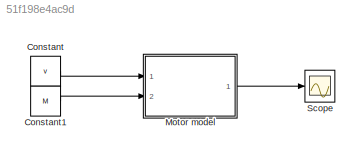
MODEL slx_51f198e4ac9d
KIND model
CONFIG AbsTol = auto
CONFIG EnableMultiTasking = off
CONFIG FixedStep = sampletime
CONFIG MaxStep = auto
CONFIG MinStep = auto
CONFIG RelTol = 1e-3
CONFIG SampleTimeConstraint = Unconstrained
CONFIG Solver = FixedStepAuto
CONFIG SolverName = FixedStepAuto
CONFIG StartTime = 0.0
CONFIG StopTime = 2410
BLOCK [Constant] Constant
  Value = v
BLOCK [Constant] Constant1
  Value = M
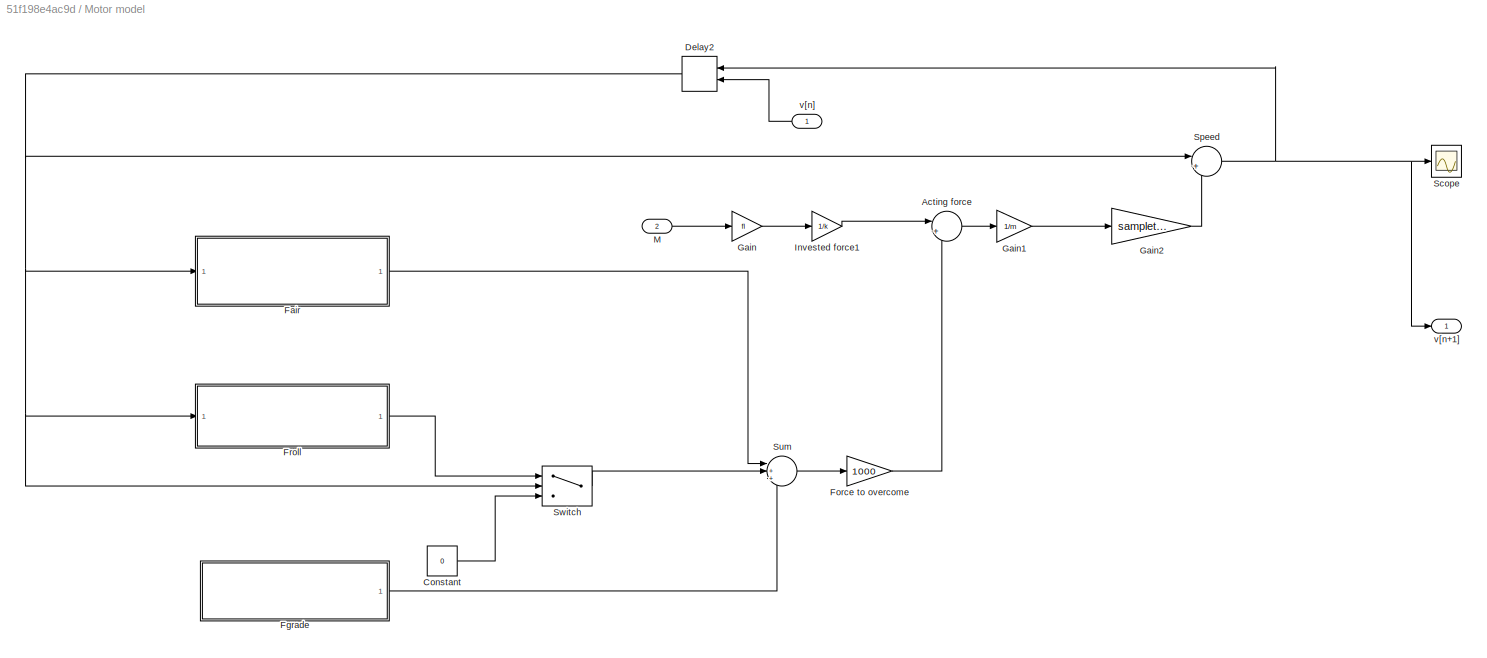
BLOCK [SubSystem] Motor model
  Ports = [2, 1]
  RequestExecContextInheritance = off
BLOCK [Sum] Motor model/Acting force 
  IconShape = round
  InputSameDT = off
  Inputs = |+-
  OutDataTypeStr = Inherit: Inherit via internal rule
  Ports = [2, 1]
  SaturateOnIntegerOverflow = off
BLOCK [Constant] Motor model/Constant
  Value = 0
BLOCK [Delay] Motor model/Delay2
  DelayLength = 1
  InitialCondition = input
  InitialConditionSource = Input port
  InputPortMap = u0,p4
  Ports = [2, 1]
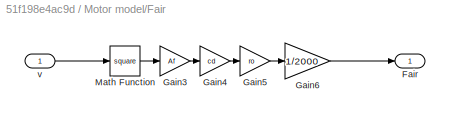
BLOCK [SubSystem] Motor model/Fair 
  Ports = [1, 1]
  RequestExecContextInheritance = off
BLOCK [Outport] Motor model/Fair /Fair
  IconDisplay = Port number
BLOCK [Gain] Motor model/Fair /Gain3
  Gain = Af
  OutDataTypeStr = Inherit: Inherit via internal rule
  ParamDataTypeStr = Inherit: Inherit via internal rule
  SaturateOnIntegerOverflow = off
BLOCK [Gain] Motor model/Fair /Gain4
  Gain = cd
  OutDataTypeStr = Inherit: Inherit via internal rule
  ParamDataTypeStr = Inherit: Inherit via internal rule
  SaturateOnIntegerOverflow = off
BLOCK [Gain] Motor model/Fair /Gain5
  Gain = ro
  OutDataTypeStr = Inherit: Inherit via internal rule
  ParamDataTypeStr = Inherit: Inherit via internal rule
  SaturateOnIntegerOverflow = off
BLOCK [Gain] Motor model/Fair /Gain6
  Gain = 1/2000
  OutDataTypeStr = Inherit: Inherit via internal rule
  ParamDataTypeStr = Inherit: Inherit via internal rule
  SaturateOnIntegerOverflow = off
BLOCK [Math] Motor model/Fair /Math Function
  Operator = square
  Ports = [1, 1]
BLOCK [Inport] Motor model/Fair /v
  IconDisplay = Port number
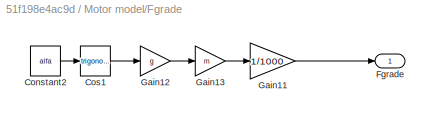
BLOCK [SubSystem] Motor model/Fgrade
  Ports = [0, 1]
  RequestExecContextInheritance = off
BLOCK [Constant] Motor model/Fgrade/Constant2
  Value = alfa
BLOCK [Trigonometry] Motor model/Fgrade/Cos1
  Ports = [1, 1]
BLOCK [Outport] Motor model/Fgrade/Fgrade
  IconDisplay = Port number
BLOCK [Gain] Motor model/Fgrade/Gain11
  Gain = 1/1000
  OutDataTypeStr = Inherit: Inherit via internal rule
  ParamDataTypeStr = Inherit: Inherit via internal rule
  SaturateOnIntegerOverflow = off
BLOCK [Gain] Motor model/Fgrade/Gain12
  Gain = g
  OutDataTypeStr = Inherit: Inherit via internal rule
  ParamDataTypeStr = Inherit: Inherit via internal rule
  SaturateOnIntegerOverflow = off
BLOCK [Gain] Motor model/Fgrade/Gain13
  Gain = m
  OutDataTypeStr = Inherit: Inherit via internal rule
  ParamDataTypeStr = Inherit: Inherit via internal rule
  SaturateOnIntegerOverflow = off
BLOCK [Gain] Motor model/Force to overcome
  Gain = 1000
  OutDataTypeStr = Inherit: Inherit via internal rule
  ParamDataTypeStr = Inherit: Inherit via internal rule
  SaturateOnIntegerOverflow = off
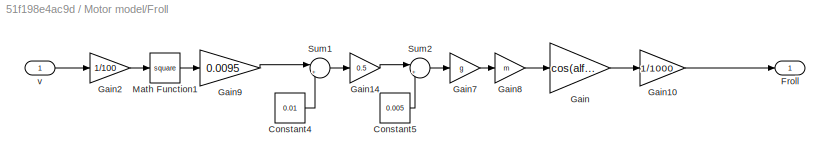
BLOCK [SubSystem] Motor model/Froll
  Ports = [1, 1]
  RequestExecContextInheritance = off
BLOCK [Constant] Motor model/Froll/Constant4
  Value = 0.01
BLOCK [Constant] Motor model/Froll/Constant5
  Value = 0.005
BLOCK [Outport] Motor model/Froll/Froll
  IconDisplay = Port number
BLOCK [Gain] Motor model/Froll/Gain
  Gain = cos(alfa)
  OutDataTypeStr = Inherit: Inherit via internal rule
  ParamDataTypeStr = Inherit: Inherit via internal rule
  SaturateOnIntegerOverflow = off
BLOCK [Gain] Motor model/Froll/Gain10
  Gain = 1/1000
  OutDataTypeStr = Inherit: Inherit via internal rule
  ParamDataTypeStr = Inherit: Inherit via internal rule
  SaturateOnIntegerOverflow = off
BLOCK [Gain] Motor model/Froll/Gain14
  Gain = 0.5
  OutDataTypeStr = Inherit: Inherit via internal rule
  ParamDataTypeStr = Inherit: Inherit via internal rule
  SaturateOnIntegerOverflow = off
BLOCK [Gain] Motor model/Froll/Gain2
  Gain = 1/100
  OutDataTypeStr = Inherit: Inherit via internal rule
  ParamDataTypeStr = Inherit: Inherit via internal rule
  SaturateOnIntegerOverflow = off
BLOCK [Gain] Motor model/Froll/Gain7
  Gain = g
  OutDataTypeStr = Inherit: Inherit via internal rule
  ParamDataTypeStr = Inherit: Inherit via internal rule
  SaturateOnIntegerOverflow = off
BLOCK [Gain] Motor model/Froll/Gain8
  Gain = m
  OutDataTypeStr = Inherit: Inherit via internal rule
  ParamDataTypeStr = Inherit: Inherit via internal rule
  SaturateOnIntegerOverflow = off
BLOCK [Gain] Motor model/Froll/Gain9
  Gain = 0.0095
  OutDataTypeStr = Inherit: Inherit via internal rule
  ParamDataTypeStr = Inherit: Inherit via internal rule
  SaturateOnIntegerOverflow = off
BLOCK [Math] Motor model/Froll/Math Function1
  Operator = square
  Ports = [1, 1]
BLOCK [Sum] Motor model/Froll/Sum1
  IconShape = round
  InputSameDT = off
  Inputs = |++
  OutDataTypeStr = Inherit: Inherit via internal rule
  Ports = [2, 1]
  SaturateOnIntegerOverflow = off
BLOCK [Sum] Motor model/Froll/Sum2
  IconShape = round
  InputSameDT = off
  Inputs = |++
  OutDataTypeStr = Inherit: Inherit via internal rule
  Ports = [2, 1]
  SaturateOnIntegerOverflow = off
BLOCK [Inport] Motor model/Froll/v
  IconDisplay = Port number
BLOCK [Gain] Motor model/Gain
  Gain = fl
  OutDataTypeStr = Inherit: Inherit via internal rule
  ParamDataTypeStr = Inherit: Inherit via internal rule
  SaturateOnIntegerOverflow = off
BLOCK [Gain] Motor model/Gain1
  Gain = 1/m
  OutDataTypeStr = Inherit: Inherit via internal rule
  ParamDataTypeStr = Inherit: Inherit via internal rule
  SaturateOnIntegerOverflow = off
BLOCK [Gain] Motor model/Gain2
  Gain = sampletime
  OutDataTypeStr = Inherit: Inherit via internal rule
  ParamDataTypeStr = Inherit: Inherit via internal rule
  SaturateOnIntegerOverflow = off
BLOCK [Gain] Motor model/Invested force1
  Gain = 1/k
  OutDataTypeStr = Inherit: Inherit via internal rule
  ParamDataTypeStr = Inherit: Inherit via internal rule
  SaturateOnIntegerOverflow = off
BLOCK [Inport] Motor model/M 
  IconDisplay = Port number
  Port = 2
BLOCK [Scope] Motor model/Scope
  Floating = off
  NumInputPorts = 1
  Ports = [1]
  ScopeSpecificationString = Simulink.scopes.TimeScopeBlockCfg('CurrentConfiguration', extmgr.ConfigurationSet(extmgr.Configuration('Core','General UI',true),extmgr.Configuration('Core','Source UI',true),extmgr.Configuration('Sources','WiredSimulink',true),extmgr.Configuration('Visuals','Time Domain',true,'SerializedDisplays',{struct('MinYLimReal','-90645228046391480379756478497159809813137989527238675372378908082688569412914...<+3121ch>
BLOCK [Sum] Motor model/Speed 
  IconShape = round
  InputSameDT = off
  Inputs = |++
  OutDataTypeStr = Inherit: Inherit via internal rule
  Ports = [2, 1]
  SaturateOnIntegerOverflow = off
BLOCK [Sum] Motor model/Sum
  IconShape = round
  InputSameDT = off
  Inputs = |+++
  OutDataTypeStr = Inherit: Inherit via internal rule
  Ports = [3, 1]
  SaturateOnIntegerOverflow = off
BLOCK [Switch] Motor model/Switch
  Criteria = u2 > Threshold
  InputSameDT = off
  SaturateOnIntegerOverflow = off
BLOCK [Outport] Motor model/v[n+1]
  IconDisplay = Port number
BLOCK [Inport] Motor model/v[n]
  IconDisplay = Port number
BLOCK [Scope] Scope
  Floating = off
  NumInputPorts = 1
  Ports = [1]
  ScopeSpecificationString = Simulink.scopes.TimeScopeBlockCfg('CurrentConfiguration', extmgr.ConfigurationSet(extmgr.Configuration('Core','General UI',true),extmgr.Configuration('Core','Source UI',true),extmgr.Configuration('Sources','WiredSimulink',true,'DataLoggingVariableName','ScopeData1'),extmgr.Configuration('Visuals','Time Domain',true),extmgr.Configuration('Tools','Plot Navigation',true),extmgr.Configuration('Tools',...<+40ch>
LINE Constant1:1 -> Motor model:2
LINE Constant:1 -> Motor model:1
LINE Motor model/Acting force :1 -> Motor model/Gain1:1
LINE Motor model/Constant:1 -> Motor model/Switch:3
NET Motor model/Delay2:1 -> Motor model/Fair :1, Motor model/Froll:1, Motor model/Speed :1, Motor model/Switch:2
LINE Motor model/Fair /Gain3:1 -> Motor model/Fair /Gain4:1
LINE Motor model/Fair /Gain4:1 -> Motor model/Fair /Gain5:1
LINE Motor model/Fair /Gain5:1 -> Motor model/Fair /Gain6:1
LINE Motor model/Fair /Gain6:1 -> Motor model/Fair /Fair:1
LINE Motor model/Fair /Math Function:1 -> Motor model/Fair /Gain3:1
LINE Motor model/Fair /v:1 -> Motor model/Fair /Math Function:1
LINE Motor model/Fair :1 -> Motor model/Sum:1
LINE Motor model/Fgrade/Constant2:1 -> Motor model/Fgrade/Cos1:1
LINE Motor model/Fgrade/Cos1:1 -> Motor model/Fgrade/Gain12:1
LINE Motor model/Fgrade/Gain11:1 -> Motor model/Fgrade/Fgrade:1
LINE Motor model/Fgrade/Gain12:1 -> Motor model/Fgrade/Gain13:1
LINE Motor model/Fgrade/Gain13:1 -> Motor model/Fgrade/Gain11:1
LINE Motor model/Fgrade:1 -> Motor model/Sum:3
LINE Motor model/Force to overcome:1 -> Motor model/Acting force :2
LINE Motor model/Froll/Constant4:1 -> Motor model/Froll/Sum1:2
LINE Motor model/Froll/Constant5:1 -> Motor model/Froll/Sum2:2
LINE Motor model/Froll/Gain10:1 -> Motor model/Froll/Froll:1
LINE Motor model/Froll/Gain14:1 -> Motor model/Froll/Sum2:1
LINE Motor model/Froll/Gain2:1 -> Motor model/Froll/Math Function1:1
LINE Motor model/Froll/Gain7:1 -> Motor model/Froll/Gain8:1
LINE Motor model/Froll/Gain8:1 -> Motor model/Froll/Gain:1
LINE Motor model/Froll/Gain9:1 -> Motor model/Froll/Sum1:1
LINE Motor model/Froll/Gain:1 -> Motor model/Froll/Gain10:1
LINE Motor model/Froll/Math Function1:1 -> Motor model/Froll/Gain9:1
LINE Motor model/Froll/Sum1:1 -> Motor model/Froll/Gain14:1
LINE Motor model/Froll/Sum2:1 -> Motor model/Froll/Gain7:1
LINE Motor model/Froll/v:1 -> Motor model/Froll/Gain2:1
LINE Motor model/Froll:1 -> Motor model/Switch:1
LINE Motor model/Gain1:1 -> Motor model/Gain2:1
LINE Motor model/Gain2:1 -> Motor model/Speed :2
LINE Motor model/Gain:1 -> Motor model/Invested force1:1
LINE Motor model/Invested force1:1 -> Motor model/Acting force :1
LINE Motor model/M :1 -> Motor model/Gain:1
NET Motor model/Speed :1 -> Motor model/Delay2:1, Motor model/Scope:1, Motor model/v[n+1]:1
LINE Motor model/Sum:1 -> Motor model/Force to overcome:1
LINE Motor model/Switch:1 -> Motor model/Sum:2
LINE Motor model/v[n]:1 -> Motor model/Delay2:2
LINE Motor model:1 -> Scope:1
note: NET lines group one-source signal fan-out (src -> all destinations, sorted); 1:1 wires keep LINE
